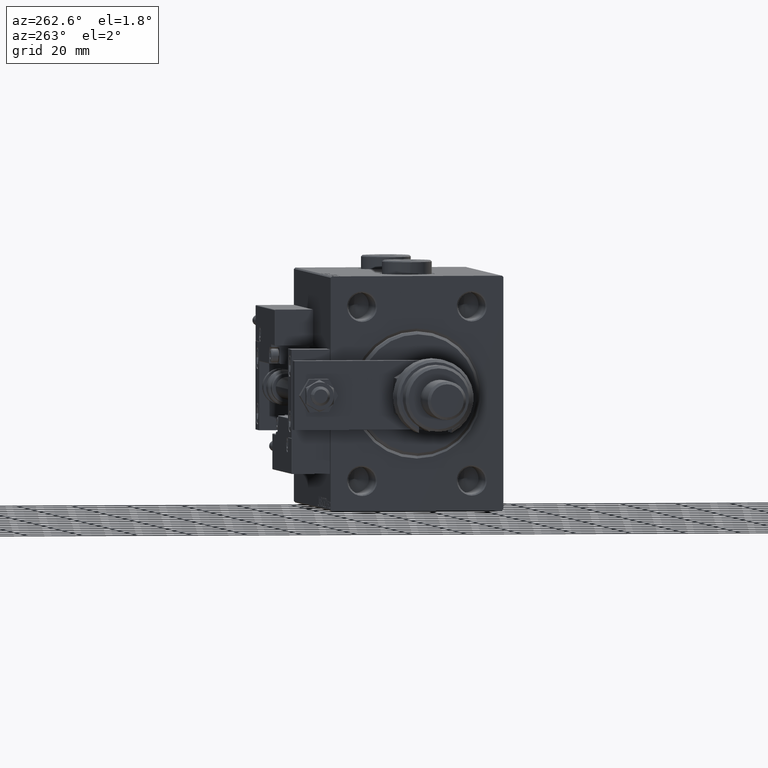
[diagram: clean part render]
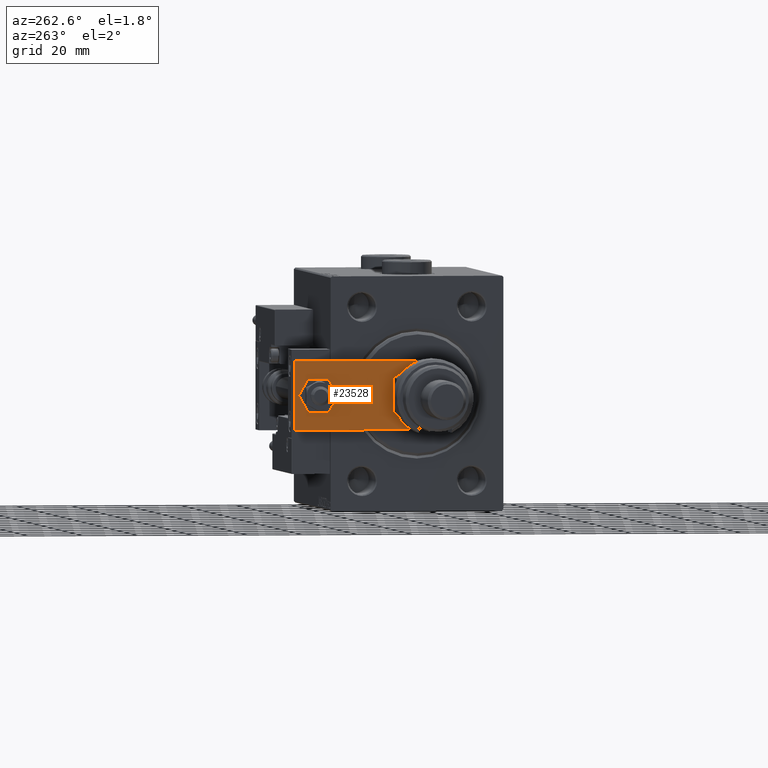
[diagram: same view with one face highlighted and labeled with its STEP entity id]
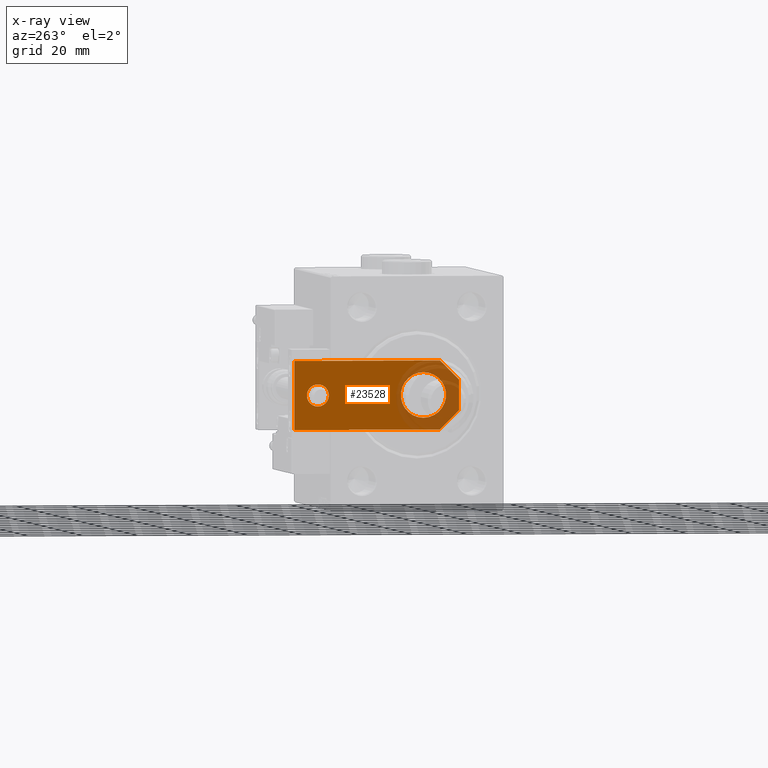
[diagram: x-ray of the same camera — body ghosted, the highlighted face saturated]
A machine part, auxiliary view. The second image highlights one B-rep face of the part: STEP entity #23528.
The next image is the same camera in x-ray: the body ghosted, the highlighted face saturated — about 21% of this face is hidden behind the body in this view.
In plain terms, the highlighted planar face has unit normal (-1, -0, 0).
Its self-contained STEP definition (entity closure, byte-faithful):
#54 = VERTEX_POINT ( 'NONE', #23388 ) ;
#655 = LINE ( 'NONE', #38458, #17301 ) ;
#2599 = CARTESIAN_POINT ( 'NONE',  ( 4.000000000000000888, 51.50000000000000000, 6.000000000000000000 ) ) ;
#4793 = VECTOR ( 'NONE', #25488, 1000.000000000000000 ) ;
#5815 = VERTEX_POINT ( 'NONE', #32221 ) ;
#6173 = ORIENTED_EDGE ( 'NONE', *, *, #25473, .T. ) ;
#6412 = CARTESIAN_POINT ( 'NONE',  ( -4.000000000000000888, 51.50000000000000000, 6.000000000000000000 ) ) ;
#7441 = CARTESIAN_POINT ( 'NONE',  ( -9.629649721936179265E-32, 12.99999999999999822, 6.000000000000000000 ) ) ;
#8503 = DIRECTION ( 'NONE',  ( 0.7071067811865465735, -0.7071067811865485719, 0.000000000000000000 ) ) ;
#9395 = DIRECTION ( 'NONE',  ( 0.000000000000000000, 0.000000000000000000, 1.000000000000000000 ) ) ;
#9472 = CARTESIAN_POINT ( 'NONE',  ( 12.50000000000000355, 60.00000000000000000, 6.000000000000000000 ) ) ;
#9508 = EDGE_CURVE ( 'NONE', #54, #21131, #55246, .T. ) ;
#9568 = VERTEX_POINT ( 'NONE', #49682 ) ;
#10508 = EDGE_CURVE ( 'NONE', #19781, #5815, #33100, .T. ) ;
#10829 = DIRECTION ( 'NONE',  ( 1.000000000000000000, 0.000000000000000000, 0.000000000000000000 ) ) ;
#10994 = CARTESIAN_POINT ( 'NONE',  ( 12.50000000000000355, 60.00000000000000000, 6.000000000000000000 ) ) ;
#12330 = CARTESIAN_POINT ( 'NONE',  ( 12.50000000000000355, 4.814824860968089633E-32, 6.000000000000000000 ) ) ;
#12435 = VERTEX_POINT ( 'NONE', #46075 ) ;
#12543 = CIRCLE ( 'NONE', #43833, 4.000000000000000888 ) ;
#12625 = DIRECTION ( 'NONE',  ( -8.673617379884035472E-17, -1.000000000000000000, 0.000000000000000000 ) ) ;
#13394 = EDGE_LOOP ( 'NONE', ( #35775, #32742 ) ) ;
#13475 = ORIENTED_EDGE ( 'NONE', *, *, #52580, .F. ) ;
#13678 = ORIENTED_EDGE ( 'NONE', *, *, #10508, .T. ) ;
#16169 = VERTEX_POINT ( 'NONE', #2599 ) ;
#17198 = CARTESIAN_POINT ( 'NONE',  ( 8.250000000000000000, 13.00000000000000000, 6.000000000000000000 ) ) ;
#17301 = VECTOR ( 'NONE', #8503, 1000.000000000000000 ) ;
#19401 = EDGE_CURVE ( 'NONE', #5815, #12435, #22136, .T. ) ;
#19781 = VERTEX_POINT ( 'NONE', #9472 ) ;
#21131 = VERTEX_POINT ( 'NONE', #17198 ) ;
#21253 = AXIS2_PLACEMENT_3D ( 'NONE', #47760, #9395, #26466 ) ;
#21665 = CARTESIAN_POINT ( 'NONE',  ( 5.499999999999976907, 4.814824860968089633E-32, 6.000000000000000000 ) ) ;
#21718 = AXIS2_PLACEMENT_3D ( 'NONE', #27923, #53408, #36876 ) ;
#21804 = DIRECTION ( 'NONE',  ( 1.000000000000000000, 0.000000000000000000, 0.000000000000000000 ) ) ;
#22136 = LINE ( 'NONE', #25781, #34962 ) ;
#23171 = FACE_BOUND ( 'NONE', #43967, .T. ) ;
#23388 = CARTESIAN_POINT ( 'NONE',  ( -8.250000000000000000, 12.99999999999999822, 6.000000000000000000 ) ) ;
#23528 = ADVANCED_FACE ( 'NONE', ( #23171, #36326, #40239 ), #31572, .T. ) ;
#23708 = DIRECTION ( 'NONE',  ( 0.000000000000000000, 0.000000000000000000, 1.000000000000000000 ) ) ;
#23961 = DIRECTION ( 'NONE',  ( 1.000000000000000000, 0.000000000000000000, 0.000000000000000000 ) ) ;
#24101 = EDGE_CURVE ( 'NONE', #12435, #9568, #655, .T. ) ;
#24114 = DIRECTION ( 'NONE',  ( 1.000000000000000000, 0.000000000000000000, 0.000000000000000000 ) ) ;
#24302 = ORIENTED_EDGE ( 'NONE', *, *, #24101, .T. ) ;
#24644 = CIRCLE ( 'NONE', #30867, 8.250000000000000000 ) ;
#25473 = EDGE_CURVE ( 'NONE', #9568, #41255, #47843, .T. ) ;
#25488 = DIRECTION ( 'NONE',  ( 0.000000000000000000, 1.000000000000000000, 0.000000000000000000 ) ) ;
#25781 = CARTESIAN_POINT ( 'NONE',  ( -12.49999999999999822, 60.00000000000000000, 6.000000000000000000 ) ) ;
#26466 = DIRECTION ( 'NONE',  ( 1.000000000000000000, 0.000000000000000000, 0.000000000000000000 ) ) ;
#27923 = CARTESIAN_POINT ( 'NONE',  ( 0.000000000000000000, 0.000000000000000000, 6.000000000000000000 ) ) ;
#28306 = CARTESIAN_POINT ( 'NONE',  ( -1.432611055310774642E-16, 51.50000000000000000, 6.000000000000000000 ) ) ;
#29091 = CARTESIAN_POINT ( 'NONE',  ( 12.50000000000000355, 7.000000000000006217, 6.000000000000000000 ) ) ;
#29839 = ORIENTED_EDGE ( 'NONE', *, *, #19401, .T. ) ;
#30067 = AXIS2_PLACEMENT_3D ( 'NONE', #39943, #23708, #10829 ) ;
#30867 = AXIS2_PLACEMENT_3D ( 'NONE', #7441, #45515, #23961 ) ;
#31572 = PLANE ( 'NONE',  #21718 ) ;
#32017 = VECTOR ( 'NONE', #39630, 1000.000000000000000 ) ;
#32221 = CARTESIAN_POINT ( 'NONE',  ( -12.49999999999999822, 60.00000000000000000, 6.000000000000000000 ) ) ;
#32742 = ORIENTED_EDGE ( 'NONE', *, *, #48152, .F. ) ;
#33100 = LINE ( 'NONE', #10994, #32017 ) ;
#33348 = LINE ( 'NONE', #12330, #4793 ) ;
#33760 = EDGE_CURVE ( 'NONE', #16169, #44295, #12543, .T. ) ;
#34120 = CARTESIAN_POINT ( 'NONE',  ( 2.749999999999980016, -2.749999999999988010, 6.000000000000000000 ) ) ;
#34962 = VECTOR ( 'NONE', #12625, 1000.000000000000000 ) ;
#35775 = ORIENTED_EDGE ( 'NONE', *, *, #9508, .F. ) ;
#36171 = DIRECTION ( 'NONE',  ( 0.000000000000000000, 0.000000000000000000, 1.000000000000000000 ) ) ;
#36326 = FACE_OUTER_BOUND ( 'NONE', #49005, .T. ) ;
#36876 = DIRECTION ( 'NONE',  ( 1.000000000000000000, 0.000000000000000000, 0.000000000000000000 ) ) ;
#37772 = ORIENTED_EDGE ( 'NONE', *, *, #33760, .F. ) ;
#38230 = CIRCLE ( 'NONE', #30067, 4.000000000000000888 ) ;
#38458 = CARTESIAN_POINT ( 'NONE',  ( -2.750000000000013767, -2.750000000000005773, 6.000000000000000000 ) ) ;
#39630 = DIRECTION ( 'NONE',  ( -1.000000000000000000, 0.000000000000000000, 0.000000000000000000 ) ) ;
#39943 = CARTESIAN_POINT ( 'NONE',  ( -1.432611055310774642E-16, 51.50000000000000000, 6.000000000000000000 ) ) ;
#40239 = FACE_BOUND ( 'NONE', #13394, .T. ) ;
#41255 = VERTEX_POINT ( 'NONE', #21665 ) ;
#42701 = VECTOR ( 'NONE', #55122, 999.9999999999998863 ) ;
#43833 = AXIS2_PLACEMENT_3D ( 'NONE', #28306, #36171, #24114 ) ;
#43967 = EDGE_LOOP ( 'NONE', ( #13475, #37772 ) ) ;
#44050 = EDGE_CURVE ( 'NONE', #55157, #19781, #33348, .T. ) ;
#44295 = VERTEX_POINT ( 'NONE', #6412 ) ;
#45515 = DIRECTION ( 'NONE',  ( 0.000000000000000000, 0.000000000000000000, 1.000000000000000000 ) ) ;
#46075 = CARTESIAN_POINT ( 'NONE',  ( -12.50000000000000355, 7.000000000000013323, 6.000000000000000000 ) ) ;
#46165 = LINE ( 'NONE', #34120, #42701 ) ;
#46833 = VECTOR ( 'NONE', #21804, 1000.000000000000000 ) ;
#47760 = CARTESIAN_POINT ( 'NONE',  ( -9.629649721936179265E-32, 12.99999999999999822, 6.000000000000000000 ) ) ;
#47787 = ORIENTED_EDGE ( 'NONE', *, *, #44050, .T. ) ;
#47843 = LINE ( 'NONE', #52583, #46833 ) ;
#48152 = EDGE_CURVE ( 'NONE', #21131, #54, #24644, .T. ) ;
#49005 = EDGE_LOOP ( 'NONE', ( #29839, #24302, #6173, #53469, #47787, #13678 ) ) ;
#49682 = CARTESIAN_POINT ( 'NONE',  ( -5.500000000000010658, 4.814824860968089633E-32, 6.000000000000000000 ) ) ;
#52378 = EDGE_CURVE ( 'NONE', #41255, #55157, #46165, .T. ) ;
#52580 = EDGE_CURVE ( 'NONE', #44295, #16169, #38230, .T. ) ;
#52583 = CARTESIAN_POINT ( 'NONE',  ( -12.50000000000000355, 4.814824860968089633E-32, 6.000000000000000000 ) ) ;
#53408 = DIRECTION ( 'NONE',  ( -0.000000000000000000, 0.000000000000000000, 1.000000000000000000 ) ) ;
#53469 = ORIENTED_EDGE ( 'NONE', *, *, #52378, .T. ) ;
#55122 = DIRECTION ( 'NONE',  ( 0.7071067811865486830, 0.7071067811865464625, -0.000000000000000000 ) ) ;
#55157 = VERTEX_POINT ( 'NONE', #29091 ) ;
#55246 = CIRCLE ( 'NONE', #21253, 8.250000000000000000 ) ;